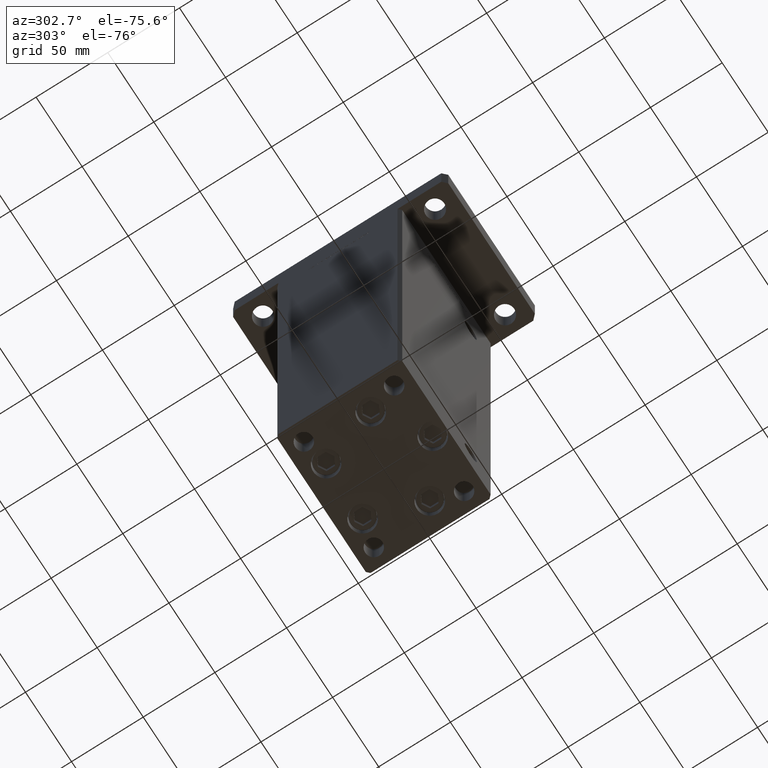
[diagram: clean part render]
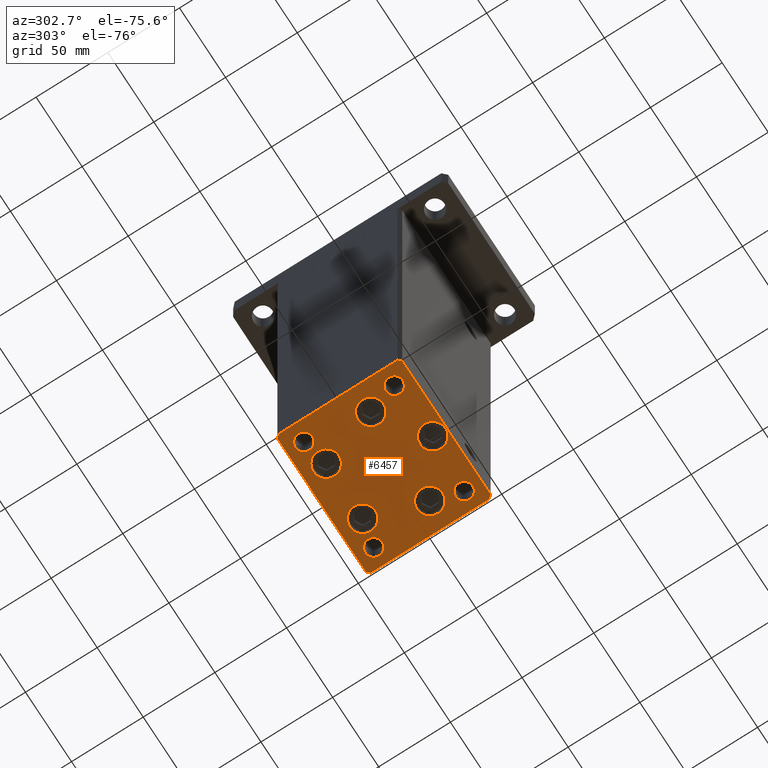
[diagram: same view with one face highlighted and labeled with its STEP entity id]
A machine part, auxiliary view. The second image highlights one B-rep face of the part: STEP entity #6457.
In plain terms, the highlighted planar face has unit normal (0, 0, -1).
Its self-contained STEP definition (entity closure, byte-faithful):
#175 = ORIENTED_EDGE ( 'NONE', *, *, #52806, .T. ) ;
#229 = PLANE ( 'NONE',  #12902 ) ;
#586 = EDGE_CURVE ( 'NONE', #32724, #48699, #25765, .T. ) ;
#599 = DIRECTION ( 'NONE',  ( -1.000000000000000000, -3.614007241618350743E-16, 0.000000000000000000 ) ) ;
#643 = CIRCLE ( 'NONE', #4216, 5.999999999999998224 ) ;
#736 = DIRECTION ( 'NONE',  ( 1.000000000000000000, 0.000000000000000000, 0.000000000000000000 ) ) ;
#892 = CARTESIAN_POINT ( 'NONE',  ( 49.99999999999992184, 41.49999999999998579, 0.000000000000000000 ) ) ;
#942 = DIRECTION ( 'NONE',  ( 1.000000000000000000, 0.000000000000000000, 0.000000000000000000 ) ) ;
#954 = ORIENTED_EDGE ( 'NONE', *, *, #47600, .F. ) ;
#1703 = DIRECTION ( 'NONE',  ( 0.000000000000000000, -0.000000000000000000, -1.000000000000000000 ) ) ;
#1711 = VERTEX_POINT ( 'NONE', #11556 ) ;
#1884 = CARTESIAN_POINT ( 'NONE',  ( 50.00000000000000000, -41.49999999999999289, 0.000000000000000000 ) ) ;
#2171 = CARTESIAN_POINT ( 'NONE',  ( 38.00000000000000000, -31.49999999999999289, 0.000000000000000000 ) ) ;
#2473 = CARTESIAN_POINT ( 'NONE',  ( -50.00000000000000000, -41.50000000000000000, 0.000000000000000000 ) ) ;
#2689 = DIRECTION ( 'NONE',  ( 1.000000000000000000, 0.000000000000000000, 0.000000000000000000 ) ) ;
#2730 = CIRCLE ( 'NONE', #24555, 9.000000000000001776 ) ;
#3171 = EDGE_LOOP ( 'NONE', ( #45350, #37498 ) ) ;
#3457 = EDGE_LOOP ( 'NONE', ( #50093, #36359 ) ) ;
#3561 = FACE_OUTER_BOUND ( 'NONE', #49157, .T. ) ;
#3738 = CARTESIAN_POINT ( 'NONE',  ( -32.05550741379015278, -11.33333333333333925, 0.000000000000000000 ) ) ;
#3997 = DIRECTION ( 'NONE',  ( 1.000000000000000000, 0.000000000000000000, 0.000000000000000000 ) ) ;
#4216 = AXIS2_PLACEMENT_3D ( 'NONE', #2171, #47727, #35446 ) ;
#4421 = CARTESIAN_POINT ( 'NONE',  ( -37.99999999999999289, -31.50000000000000000, 0.000000000000000000 ) ) ;
#4498 = VECTOR ( 'NONE', #599, 1000.000000000000000 ) ;
#4504 = CIRCLE ( 'NONE', #31418, 9.000000000000000000 ) ;
#5261 = DIRECTION ( 'NONE',  ( -0.7071067811865463515, -0.7071067811865487940, 0.000000000000000000 ) ) ;
#5496 = VERTEX_POINT ( 'NONE', #15212 ) ;
#5505 = EDGE_CURVE ( 'NONE', #33513, #30689, #43892, .T. ) ;
#5766 = CARTESIAN_POINT ( 'NONE',  ( -44.00000000000000000, 31.50000000000000000, 0.000000000000000000 ) ) ;
#5865 = VERTEX_POINT ( 'NONE', #20060 ) ;
#5918 = DIRECTION ( 'NONE',  ( -0.000000000000000000, 0.000000000000000000, 1.000000000000000000 ) ) ;
#5928 = CIRCLE ( 'NONE', #25085, 9.000000000000000000 ) ;
#6088 = AXIS2_PLACEMENT_3D ( 'NONE', #4421, #21054, #51060 ) ;
#6457 = ADVANCED_FACE ( 'NONE', ( #49114, #15564, #48577, #44492, #7103, #23758, #40405, #32220, #3561, #37601 ), #229, .T. ) ;
#6547 = VERTEX_POINT ( 'NONE', #10271 ) ;
#6581 = ORIENTED_EDGE ( 'NONE', *, *, #13969, .F. ) ;
#6685 = CIRCLE ( 'NONE', #25885, 9.000000000000000000 ) ;
#6699 = CARTESIAN_POINT ( 'NONE',  ( -8.999999999999996447, -34.00000000000000000, 0.000000000000000000 ) ) ;
#7103 = FACE_BOUND ( 'NONE', #3171, .T. ) ;
#7121 = EDGE_CURVE ( 'NONE', #48728, #50250, #5928, .T. ) ;
#7172 = EDGE_CURVE ( 'NONE', #38165, #17190, #16984, .T. ) ;
#7310 = CIRCLE ( 'NONE', #41305, 9.000000000000001776 ) ;
#7660 = EDGE_CURVE ( 'NONE', #1711, #12985, #643, .T. ) ;
#7735 = EDGE_LOOP ( 'NONE', ( #35556, #16887 ) ) ;
#8095 = CARTESIAN_POINT ( 'NONE',  ( -50.00000000000000711, 41.49999999999995026, 0.000000000000000000 ) ) ;
#8159 = VERTEX_POINT ( 'NONE', #21912 ) ;
#8378 = DIRECTION ( 'NONE',  ( 0.000000000000000000, -0.000000000000000000, -1.000000000000000000 ) ) ;
#8435 = DIRECTION ( 'NONE',  ( -0.000000000000000000, 0.000000000000000000, 1.000000000000000000 ) ) ;
#9210 = DIRECTION ( 'NONE',  ( 1.000000000000000000, 0.000000000000000000, 0.000000000000000000 ) ) ;
#9436 = EDGE_LOOP ( 'NONE', ( #35605, #45132 ) ) ;
#9562 = CIRCLE ( 'NONE', #6088, 6.000000000000005329 ) ;
#10271 = CARTESIAN_POINT ( 'NONE',  ( -50.00000000000000000, -41.50000000000000000, 0.000000000000000000 ) ) ;
#10515 = ORIENTED_EDGE ( 'NONE', *, *, #33167, .T. ) ;
#10530 = DIRECTION ( 'NONE',  ( 1.000000000000000000, 0.000000000000000000, 0.000000000000000000 ) ) ;
#10604 = LINE ( 'NONE', #27521, #40857 ) ;
#10665 = VERTEX_POINT ( 'NONE', #41391 ) ;
#11032 = ORIENTED_EDGE ( 'NONE', *, *, #7121, .T. ) ;
#11152 = VERTEX_POINT ( 'NONE', #24503 ) ;
#11173 = ORIENTED_EDGE ( 'NONE', *, *, #27329, .F. ) ;
#11556 = CARTESIAN_POINT ( 'NONE',  ( 44.00000000000000000, -31.49999999999999289, 0.000000000000000000 ) ) ;
#11974 = ORIENTED_EDGE ( 'NONE', *, *, #15447, .T. ) ;
#12148 = EDGE_CURVE ( 'NONE', #12985, #1711, #51264, .T. ) ;
#12273 = DIRECTION ( 'NONE',  ( 1.000000000000000000, 0.000000000000000000, 0.000000000000000000 ) ) ;
#12902 = AXIS2_PLACEMENT_3D ( 'NONE', #21490, #5918, #9210 ) ;
#12985 = VERTEX_POINT ( 'NONE', #46960 ) ;
#13233 = DIRECTION ( 'NONE',  ( -0.000000000000000000, 0.000000000000000000, 1.000000000000000000 ) ) ;
#13969 = EDGE_CURVE ( 'NONE', #5496, #48870, #53888, .T. ) ;
#14132 = EDGE_CURVE ( 'NONE', #8159, #39201, #20787, .T. ) ;
#14161 = LINE ( 'NONE', #1884, #49182 ) ;
#14690 = DIRECTION ( 'NONE',  ( 0.7071067811865463515, 0.7071067811865487940, 0.000000000000000000 ) ) ;
#14753 = CARTESIAN_POINT ( 'NONE',  ( 32.05550741379015278, -11.33333333333333037, 0.000000000000000000 ) ) ;
#14757 = DIRECTION ( 'NONE',  ( 1.000000000000000000, 0.000000000000000000, 0.000000000000000000 ) ) ;
#14806 = AXIS2_PLACEMENT_3D ( 'NONE', #49642, #8435, #12273 ) ;
#15212 = CARTESIAN_POINT ( 'NONE',  ( 44.00000000000000000, 31.49999999999999289, 0.000000000000000000 ) ) ;
#15447 = EDGE_CURVE ( 'NONE', #17190, #6547, #27421, .T. ) ;
#15490 = DIRECTION ( 'NONE',  ( 1.000000000000000000, 0.000000000000000000, 0.000000000000000000 ) ) ;
#15564 = FACE_BOUND ( 'NONE', #3457, .T. ) ;
#16778 = DIRECTION ( 'NONE',  ( -0.000000000000000000, 0.000000000000000000, 1.000000000000000000 ) ) ;
#16887 = ORIENTED_EDGE ( 'NONE', *, *, #12148, .T. ) ;
#16984 = LINE ( 'NONE', #33643, #50358 ) ;
#17053 = AXIS2_PLACEMENT_3D ( 'NONE', #50894, #16778, #46803 ) ;
#17186 = DIRECTION ( 'NONE',  ( -0.7071067811865474617, 0.7071067811865474617, 0.000000000000000000 ) ) ;
#17190 = VERTEX_POINT ( 'NONE', #8095 ) ;
#17783 = DIRECTION ( 'NONE',  ( 1.000000000000000000, 0.000000000000000000, 0.000000000000000000 ) ) ;
#18085 = VERTEX_POINT ( 'NONE', #892 ) ;
#18536 = ORIENTED_EDGE ( 'NONE', *, *, #5505, .T. ) ;
#18840 = CARTESIAN_POINT ( 'NONE',  ( 19.82068048781373193, 27.62500000000000000, 0.000000000000000000 ) ) ;
#19091 = DIRECTION ( 'NONE',  ( 0.7071067811865474617, -0.7071067811865474617, 0.000000000000000000 ) ) ;
#19195 = DIRECTION ( 'NONE',  ( 0.000000000000000000, -0.000000000000000000, -1.000000000000000000 ) ) ;
#20060 = CARTESIAN_POINT ( 'NONE',  ( -41.05550741379015278, -11.33333333333333925, 0.000000000000000000 ) ) ;
#20273 = CARTESIAN_POINT ( 'NONE',  ( -10.82068048781373903, 27.62499999999999645, 0.000000000000000000 ) ) ;
#20649 = DIRECTION ( 'NONE',  ( 1.000000000000000000, 0.000000000000000000, 0.000000000000000000 ) ) ;
#20716 = VECTOR ( 'NONE', #17186, 1000.000000000000114 ) ;
#20787 = CIRCLE ( 'NONE', #26040, 8.999999999999998224 ) ;
#21024 = VERTEX_POINT ( 'NONE', #6699 ) ;
#21034 = ORIENTED_EDGE ( 'NONE', *, *, #26786, .T. ) ;
#21054 = DIRECTION ( 'NONE',  ( 0.000000000000000000, -0.000000000000000000, -1.000000000000000000 ) ) ;
#21408 = ORIENTED_EDGE ( 'NONE', *, *, #47447, .T. ) ;
#21489 = CARTESIAN_POINT ( 'NONE',  ( 23.05550741379014923, -11.33333333333333037, 0.000000000000000000 ) ) ;
#21490 = CARTESIAN_POINT ( 'NONE',  ( 0.000000000000000000, 0.000000000000000000, 0.000000000000000000 ) ) ;
#21673 = EDGE_CURVE ( 'NONE', #11152, #32858, #42205, .T. ) ;
#21912 = CARTESIAN_POINT ( 'NONE',  ( 28.82068048781372838, 27.62500000000000000, 0.000000000000000000 ) ) ;
#22167 = DIRECTION ( 'NONE',  ( 0.000000000000000000, -0.000000000000000000, -1.000000000000000000 ) ) ;
#22257 = CARTESIAN_POINT ( 'NONE',  ( -50.00000000000000711, 41.49999999999995026, 0.000000000000000000 ) ) ;
#23575 = DIRECTION ( 'NONE',  ( 1.000000000000000000, 0.000000000000000000, 0.000000000000000000 ) ) ;
#23758 = FACE_BOUND ( 'NONE', #26773, .T. ) ;
#24423 = CARTESIAN_POINT ( 'NONE',  ( 10.82068048781373193, 27.62500000000000000, 0.000000000000000000 ) ) ;
#24503 = CARTESIAN_POINT ( 'NONE',  ( -31.99999999999998579, -31.50000000000000000, 0.000000000000000000 ) ) ;
#24555 = AXIS2_PLACEMENT_3D ( 'NONE', #46495, #33670, #942 ) ;
#25085 = AXIS2_PLACEMENT_3D ( 'NONE', #42378, #22167, #46468 ) ;
#25123 = DIRECTION ( 'NONE',  ( -0.000000000000000000, 0.000000000000000000, 1.000000000000000000 ) ) ;
#25180 = EDGE_CURVE ( 'NONE', #31178, #43142, #7310, .T. ) ;
#25496 = CARTESIAN_POINT ( 'NONE',  ( -47.99999999999999289, -43.50000000000001421, 0.000000000000000000 ) ) ;
#25729 = CIRCLE ( 'NONE', #33551, 5.999999999999998224 ) ;
#25765 = CIRCLE ( 'NONE', #17053, 5.999999999999998224 ) ;
#25825 = DIRECTION ( 'NONE',  ( 0.000000000000000000, -0.000000000000000000, -1.000000000000000000 ) ) ;
#25885 = AXIS2_PLACEMENT_3D ( 'NONE', #43297, #31553, #10530 ) ;
#25907 = EDGE_CURVE ( 'NONE', #31614, #5865, #46607, .T. ) ;
#26040 = AXIS2_PLACEMENT_3D ( 'NONE', #41501, #19195, #23575 ) ;
#26773 = EDGE_LOOP ( 'NONE', ( #6581, #954 ) ) ;
#26786 = EDGE_CURVE ( 'NONE', #30689, #18085, #14161, .T. ) ;
#26908 = ORIENTED_EDGE ( 'NONE', *, *, #25180, .T. ) ;
#27329 = EDGE_CURVE ( 'NONE', #48699, #32724, #25729, .T. ) ;
#27421 = LINE ( 'NONE', #22257, #28058 ) ;
#27521 = CARTESIAN_POINT ( 'NONE',  ( -47.99999999999999289, -43.50000000000001421, 0.000000000000000000 ) ) ;
#27729 = AXIS2_PLACEMENT_3D ( 'NONE', #43971, #44968, #32700 ) ;
#28058 = VECTOR ( 'NONE', #52502, 1000.000000000000000 ) ;
#28853 = CARTESIAN_POINT ( 'NONE',  ( -48.00000000000000711, 43.49999999999996447, 0.000000000000000000 ) ) ;
#28876 = CARTESIAN_POINT ( 'NONE',  ( 4.163799117101000559E-15, -34.00000000000000000, 0.000000000000000000 ) ) ;
#28936 = EDGE_LOOP ( 'NONE', ( #26908, #45948 ) ) ;
#29030 = CARTESIAN_POINT ( 'NONE',  ( 41.05550741379015278, -11.33333333333332860, 0.000000000000000000 ) ) ;
#29344 = CARTESIAN_POINT ( 'NONE',  ( -38.00000000000000000, 31.50000000000000000, 0.000000000000000000 ) ) ;
#29565 = CARTESIAN_POINT ( 'NONE',  ( -23.05550741379014923, -11.33333333333333748, 0.000000000000000000 ) ) ;
#30017 = EDGE_LOOP ( 'NONE', ( #11173, #49123 ) ) ;
#30265 = EDGE_CURVE ( 'NONE', #21024, #37173, #40583, .T. ) ;
#30405 = AXIS2_PLACEMENT_3D ( 'NONE', #49674, #25123, #33048 ) ;
#30689 = VERTEX_POINT ( 'NONE', #33431 ) ;
#30819 = DIRECTION ( 'NONE',  ( -1.003213576468515193E-15, 1.000000000000000000, 0.000000000000000000 ) ) ;
#31178 = VERTEX_POINT ( 'NONE', #21489 ) ;
#31418 = AXIS2_PLACEMENT_3D ( 'NONE', #38108, #25825, #736 ) ;
#31553 = DIRECTION ( 'NONE',  ( 0.000000000000000000, -0.000000000000000000, -1.000000000000000000 ) ) ;
#31614 = VERTEX_POINT ( 'NONE', #29565 ) ;
#31742 = CARTESIAN_POINT ( 'NONE',  ( 47.99999999999999289, -43.50000000000001421, 0.000000000000000000 ) ) ;
#32220 = FACE_BOUND ( 'NONE', #30017, .T. ) ;
#32579 = ORIENTED_EDGE ( 'NONE', *, *, #34707, .T. ) ;
#32649 = AXIS2_PLACEMENT_3D ( 'NONE', #3738, #45758, #20649 ) ;
#32700 = DIRECTION ( 'NONE',  ( 1.000000000000000000, 0.000000000000000000, 0.000000000000000000 ) ) ;
#32724 = VERTEX_POINT ( 'NONE', #5766 ) ;
#32858 = VERTEX_POINT ( 'NONE', #52927 ) ;
#32954 = CIRCLE ( 'NONE', #53844, 9.000000000000001776 ) ;
#33048 = DIRECTION ( 'NONE',  ( 1.000000000000000000, 0.000000000000000000, 0.000000000000000000 ) ) ;
#33132 = VECTOR ( 'NONE', #19091, 1000.000000000000114 ) ;
#33167 = EDGE_CURVE ( 'NONE', #50250, #48728, #6685, .T. ) ;
#33431 = CARTESIAN_POINT ( 'NONE',  ( 50.00000000000000000, -41.49999999999999289, 0.000000000000000000 ) ) ;
#33513 = VERTEX_POINT ( 'NONE', #31742 ) ;
#33551 = AXIS2_PLACEMENT_3D ( 'NONE', #29344, #13233, #45974 ) ;
#33643 = CARTESIAN_POINT ( 'NONE',  ( -48.00000000000000711, 43.49999999999996447, 0.000000000000000000 ) ) ;
#33670 = DIRECTION ( 'NONE',  ( 0.000000000000000000, -0.000000000000000000, -1.000000000000000000 ) ) ;
#33883 = LINE ( 'NONE', #45617, #4498 ) ;
#34707 = EDGE_CURVE ( 'NONE', #18085, #10665, #49665, .T. ) ;
#35269 = CARTESIAN_POINT ( 'NONE',  ( 9.000000000000003553, -34.00000000000000000, 0.000000000000000000 ) ) ;
#35428 = EDGE_LOOP ( 'NONE', ( #43864, #175 ) ) ;
#35446 = DIRECTION ( 'NONE',  ( 1.000000000000000000, 0.000000000000000000, 0.000000000000000000 ) ) ;
#35556 = ORIENTED_EDGE ( 'NONE', *, *, #7660, .T. ) ;
#35605 = ORIENTED_EDGE ( 'NONE', *, *, #21673, .T. ) ;
#36218 = AXIS2_PLACEMENT_3D ( 'NONE', #28876, #8378, #45504 ) ;
#36359 = ORIENTED_EDGE ( 'NONE', *, *, #14132, .T. ) ;
#37173 = VERTEX_POINT ( 'NONE', #35269 ) ;
#37498 = ORIENTED_EDGE ( 'NONE', *, *, #25907, .T. ) ;
#37601 = FACE_BOUND ( 'NONE', #9436, .T. ) ;
#38108 = CARTESIAN_POINT ( 'NONE',  ( 4.163799117101000559E-15, -34.00000000000000000, 0.000000000000000000 ) ) ;
#38165 = VERTEX_POINT ( 'NONE', #28853 ) ;
#39201 = VERTEX_POINT ( 'NONE', #24423 ) ;
#39833 = EDGE_CURVE ( 'NONE', #43142, #31178, #32954, .T. ) ;
#39853 = LINE ( 'NONE', #2473, #33132 ) ;
#40067 = CARTESIAN_POINT ( 'NONE',  ( 47.99999999999999289, -43.50000000000001421, 0.000000000000000000 ) ) ;
#40405 = FACE_BOUND ( 'NONE', #7735, .T. ) ;
#40514 = ORIENTED_EDGE ( 'NONE', *, *, #42473, .T. ) ;
#40575 = DIRECTION ( 'NONE',  ( 0.000000000000000000, -0.000000000000000000, -1.000000000000000000 ) ) ;
#40583 = CIRCLE ( 'NONE', #36218, 9.000000000000000000 ) ;
#40820 = CIRCLE ( 'NONE', #42586, 8.999999999999998224 ) ;
#40857 = VECTOR ( 'NONE', #2689, 1000.000000000000000 ) ;
#41299 = EDGE_CURVE ( 'NONE', #39201, #8159, #40820, .T. ) ;
#41305 = AXIS2_PLACEMENT_3D ( 'NONE', #41390, #40575, #3997 ) ;
#41390 = CARTESIAN_POINT ( 'NONE',  ( 32.05550741379015278, -11.33333333333333037, 0.000000000000000000 ) ) ;
#41391 = CARTESIAN_POINT ( 'NONE',  ( 47.99999999999990763, 43.50000000000000000, 0.000000000000000000 ) ) ;
#41501 = CARTESIAN_POINT ( 'NONE',  ( 19.82068048781373193, 27.62500000000000000, 0.000000000000000000 ) ) ;
#42205 = CIRCLE ( 'NONE', #49140, 6.000000000000005329 ) ;
#42378 = CARTESIAN_POINT ( 'NONE',  ( -19.82068048781373903, 27.62499999999999645, 0.000000000000000000 ) ) ;
#42473 = EDGE_CURVE ( 'NONE', #46778, #33513, #10604, .T. ) ;
#42586 = AXIS2_PLACEMENT_3D ( 'NONE', #18840, #52663, #14757 ) ;
#42634 = DIRECTION ( 'NONE',  ( 0.000000000000000000, -0.000000000000000000, -1.000000000000000000 ) ) ;
#43142 = VERTEX_POINT ( 'NONE', #29030 ) ;
#43297 = CARTESIAN_POINT ( 'NONE',  ( -19.82068048781373903, 27.62499999999999645, 0.000000000000000000 ) ) ;
#43366 = VECTOR ( 'NONE', #14690, 1000.000000000000000 ) ;
#43864 = ORIENTED_EDGE ( 'NONE', *, *, #30265, .T. ) ;
#43892 = LINE ( 'NONE', #40067, #43366 ) ;
#43971 = CARTESIAN_POINT ( 'NONE',  ( 38.00000000000000000, -31.49999999999999289, 0.000000000000000000 ) ) ;
#44492 = FACE_BOUND ( 'NONE', #35428, .T. ) ;
#44968 = DIRECTION ( 'NONE',  ( 0.000000000000000000, -0.000000000000000000, -1.000000000000000000 ) ) ;
#45132 = ORIENTED_EDGE ( 'NONE', *, *, #47205, .T. ) ;
#45350 = ORIENTED_EDGE ( 'NONE', *, *, #46095, .T. ) ;
#45504 = DIRECTION ( 'NONE',  ( 1.000000000000000000, 0.000000000000000000, 0.000000000000000000 ) ) ;
#45617 = CARTESIAN_POINT ( 'NONE',  ( 47.99999999999990763, 43.50000000000000000, 0.000000000000000000 ) ) ;
#45758 = DIRECTION ( 'NONE',  ( 0.000000000000000000, -0.000000000000000000, -1.000000000000000000 ) ) ;
#45948 = ORIENTED_EDGE ( 'NONE', *, *, #39833, .T. ) ;
#45974 = DIRECTION ( 'NONE',  ( 1.000000000000000000, 0.000000000000000000, 0.000000000000000000 ) ) ;
#46095 = EDGE_CURVE ( 'NONE', #5865, #31614, #2730, .T. ) ;
#46220 = EDGE_CURVE ( 'NONE', #10665, #38165, #33883, .T. ) ;
#46468 = DIRECTION ( 'NONE',  ( 1.000000000000000000, 0.000000000000000000, 0.000000000000000000 ) ) ;
#46495 = CARTESIAN_POINT ( 'NONE',  ( -32.05550741379015278, -11.33333333333333925, 0.000000000000000000 ) ) ;
#46607 = CIRCLE ( 'NONE', #32649, 9.000000000000001776 ) ;
#46623 = ORIENTED_EDGE ( 'NONE', *, *, #46220, .T. ) ;
#46778 = VERTEX_POINT ( 'NONE', #25496 ) ;
#46803 = DIRECTION ( 'NONE',  ( 1.000000000000000000, 0.000000000000000000, 0.000000000000000000 ) ) ;
#46938 = CARTESIAN_POINT ( 'NONE',  ( -32.00000000000000000, 31.50000000000000000, 0.000000000000000000 ) ) ;
#46960 = CARTESIAN_POINT ( 'NONE',  ( 32.00000000000000000, -31.49999999999999289, 0.000000000000000000 ) ) ;
#47205 = EDGE_CURVE ( 'NONE', #32858, #11152, #9562, .T. ) ;
#47428 = ORIENTED_EDGE ( 'NONE', *, *, #7172, .T. ) ;
#47447 = EDGE_CURVE ( 'NONE', #6547, #46778, #39853, .T. ) ;
#47600 = EDGE_CURVE ( 'NONE', #48870, #5496, #51395, .T. ) ;
#47727 = DIRECTION ( 'NONE',  ( 0.000000000000000000, -0.000000000000000000, -1.000000000000000000 ) ) ;
#48577 = FACE_BOUND ( 'NONE', #28936, .T. ) ;
#48699 = VERTEX_POINT ( 'NONE', #46938 ) ;
#48728 = VERTEX_POINT ( 'NONE', #51800 ) ;
#48870 = VERTEX_POINT ( 'NONE', #51478 ) ;
#49114 = FACE_BOUND ( 'NONE', #49438, .T. ) ;
#49123 = ORIENTED_EDGE ( 'NONE', *, *, #586, .F. ) ;
#49140 = AXIS2_PLACEMENT_3D ( 'NONE', #51614, #1703, #15490 ) ;
#49157 = EDGE_LOOP ( 'NONE', ( #21408, #40514, #18536, #21034, #32579, #46623, #47428, #11974 ) ) ;
#49182 = VECTOR ( 'NONE', #30819, 1000.000000000000000 ) ;
#49438 = EDGE_LOOP ( 'NONE', ( #11032, #10515 ) ) ;
#49642 = CARTESIAN_POINT ( 'NONE',  ( 38.00000000000000000, 31.49999999999999289, 0.000000000000000000 ) ) ;
#49665 = LINE ( 'NONE', #49932, #20716 ) ;
#49674 = CARTESIAN_POINT ( 'NONE',  ( 38.00000000000000000, 31.49999999999999289, 0.000000000000000000 ) ) ;
#49932 = CARTESIAN_POINT ( 'NONE',  ( 49.99999999999992184, 41.49999999999998579, 0.000000000000000000 ) ) ;
#50093 = ORIENTED_EDGE ( 'NONE', *, *, #41299, .T. ) ;
#50250 = VERTEX_POINT ( 'NONE', #20273 ) ;
#50358 = VECTOR ( 'NONE', #5261, 1000.000000000000000 ) ;
#50894 = CARTESIAN_POINT ( 'NONE',  ( -38.00000000000000000, 31.50000000000000000, 0.000000000000000000 ) ) ;
#51060 = DIRECTION ( 'NONE',  ( 1.000000000000000000, 0.000000000000000000, 0.000000000000000000 ) ) ;
#51264 = CIRCLE ( 'NONE', #27729, 5.999999999999998224 ) ;
#51395 = CIRCLE ( 'NONE', #14806, 5.999999999999998224 ) ;
#51478 = CARTESIAN_POINT ( 'NONE',  ( 32.00000000000000000, 31.49999999999999289, 0.000000000000000000 ) ) ;
#51614 = CARTESIAN_POINT ( 'NONE',  ( -37.99999999999999289, -31.50000000000000000, 0.000000000000000000 ) ) ;
#51800 = CARTESIAN_POINT ( 'NONE',  ( -28.82068048781373548, 27.62499999999999645, 0.000000000000000000 ) ) ;
#52502 = DIRECTION ( 'NONE',  ( 8.360113137237628665E-17, -1.000000000000000000, 0.000000000000000000 ) ) ;
#52663 = DIRECTION ( 'NONE',  ( 0.000000000000000000, -0.000000000000000000, -1.000000000000000000 ) ) ;
#52806 = EDGE_CURVE ( 'NONE', #37173, #21024, #4504, .T. ) ;
#52927 = CARTESIAN_POINT ( 'NONE',  ( -44.00000000000000000, -31.50000000000000000, 0.000000000000000000 ) ) ;
#53844 = AXIS2_PLACEMENT_3D ( 'NONE', #14753, #42634, #17783 ) ;
#53888 = CIRCLE ( 'NONE', #30405, 5.999999999999998224 ) ;